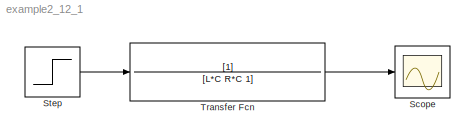
MODEL example2_12_1
KIND model
BLOCK [Scope] Scope
  NumInputPorts = 1
  Ports = [1]
  SID = 2
  ScopeSpecificationString = Simulink.scopes.TimeScopeBlockCfg('CurrentConfiguration', extmgr.ConfigurationSet(extmgr.Configuration('Core','General UI',true),extmgr.Configuration('Core','Source UI',true),extmgr.Configuration('Sources','WiredSimulink',true),extmgr.Configuration('Visuals','Time Domain',true,'SerializedDisplays',{struct('MinYLimReal','-1','MaxYLimReal','2','YLabelReal','','MinYLimMag','0.00000','MaxYLimMag','1.4...<+1374ch>
BLOCK [Step] Step
  SID = 3
  SampleTime = 0
  Time = 1e-4
BLOCK [TransferFcn] Transfer Fcn
  Denominator = [L*C R*C 1]
  SID = 1
LINE Step:1 -> Transfer Fcn:1
LINE Transfer Fcn:1 -> Scope:1
